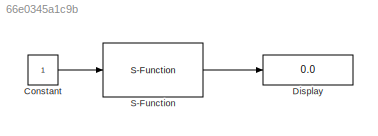
MODEL slx_66e0345a1c9b
KIND model
CONFIG AbsTol = auto
CONFIG EnableMultiTasking = on
CONFIG FixedStep = 1
CONFIG MaxStep = auto
CONFIG MinStep = auto
CONFIG RelTol = 1e-3
CONFIG SampleTimeConstraint = Unconstrained
CONFIG Solver = FixedStepDiscrete
CONFIG SolverName = FixedStepDiscrete
CONFIG StartTime = 0.0
CONFIG StopTime = 2
BLOCK [Constant] Constant
BLOCK [Display] Display
  Decimation = 1
  Ports = [1]
BLOCK [S-Function] S-Function
  EnableBusSupport = off
  FunctionName = sfunOffset
  Parameters = 3
  Ports = [1, 1]
  SFcnIsStateOwnerBlock = off
  SFunctionDeploymentMode = off
LINE Constant:1 -> S-Function:1
LINE S-Function:1 -> Display:1
